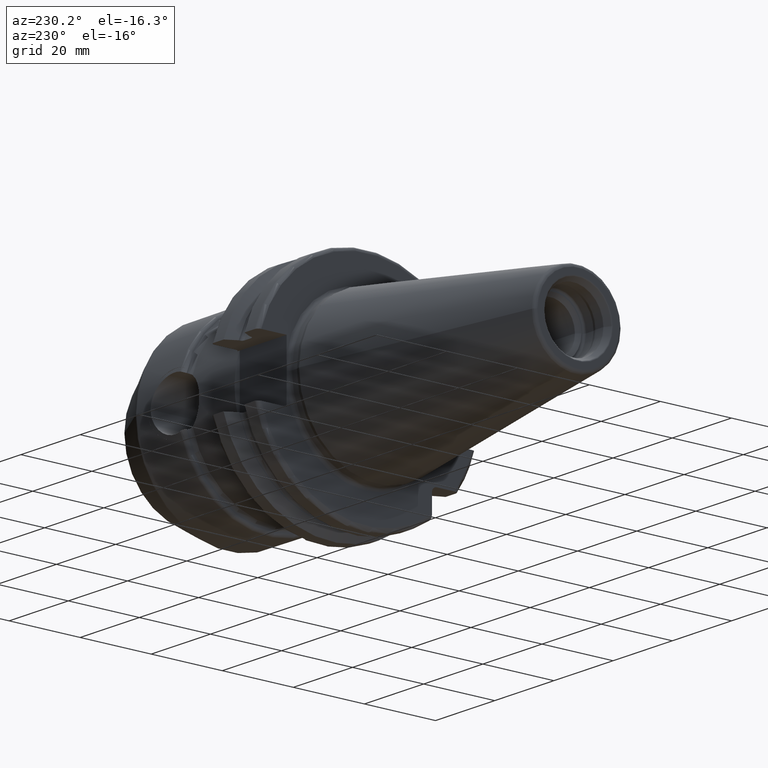
[diagram: clean part render]
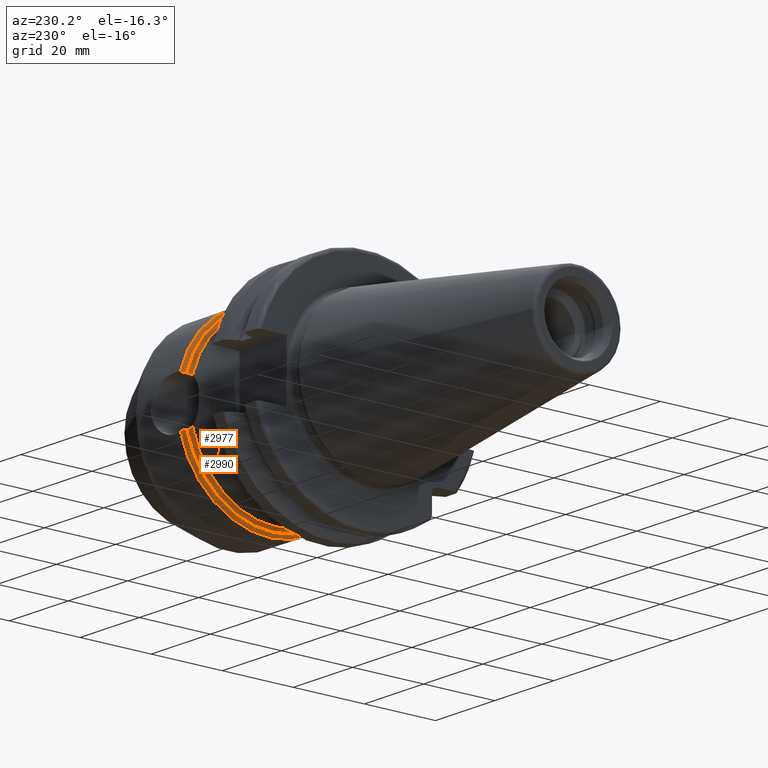
[diagram: same view with one multi-face feature highlighted, each face labeled with its STEP entity id]
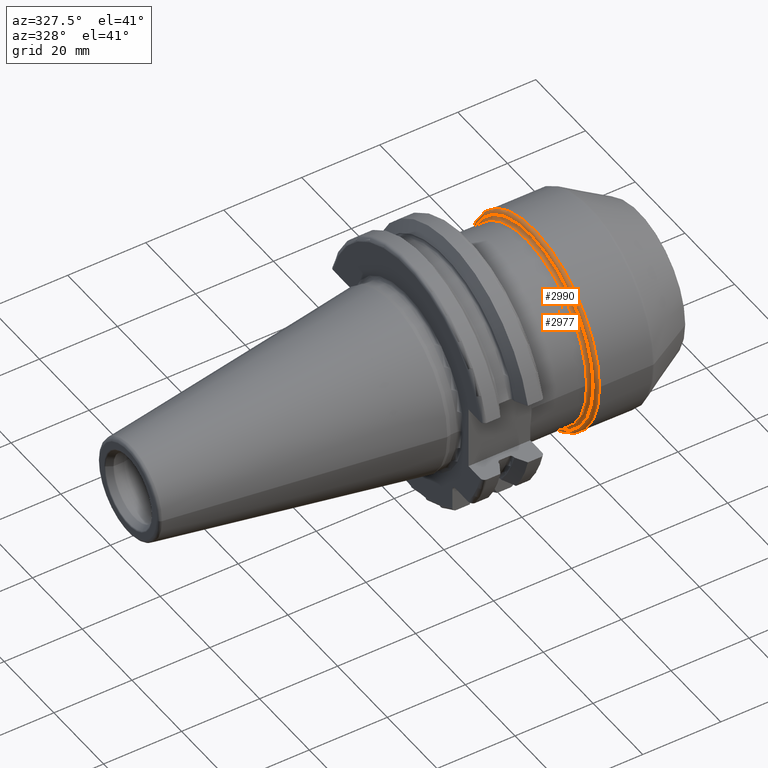
[diagram: same view with one multi-face feature highlighted, each face labeled with its STEP entity id]
A machine part, auxiliary view. The highlighted faces form ONE feature: a constant-radius fillet chain: 2 tangent blend faces with common blend radius 1 mm. The faces share edges in the B-rep.
A second angle (auxiliary view) of the same feature is appended — it is thin or edge-on in the first view.
Their STEP definitions:
[1] entity #2977 (Torus):
#144=CARTESIAN_POINT('',(3.405E1,2.329382965508E1,5.779057016504E0));
#157=CARTESIAN_POINT('',(3.405E1,0.E0,0.E0));
#158=DIRECTION('',(1.E0,0.E0,0.E0));
#159=DIRECTION('',(0.E0,9.705762356284E-1,2.407940423543E-1));
#160=AXIS2_PLACEMENT_3D('',#157,#158,#159);
#389=CARTESIAN_POINT('',(3.405E1,2.329382965508E1,-5.779057016504E0));
#408=CARTESIAN_POINT('',(3.405E1,0.E0,0.E0));
#409=DIRECTION('',(1.E0,0.E0,0.E0));
#410=DIRECTION('',(0.E0,-1.E0,0.E0));
#411=AXIS2_PLACEMENT_3D('',#408,#409,#410);
#1216=CARTESIAN_POINT('',(3.405E1,2.329382965508E1,-5.779057016504E0));
#1217=CARTESIAN_POINT('',(3.411745429534E1,2.328239124111E1,-5.825162196959E0));
#1218=CARTESIAN_POINT('',(3.425294254567E1,2.327344791337E1,-5.914404785129E0));
#1219=CARTESIAN_POINT('',(3.446715264422E1,2.331041673548E1,-6.044760707588E0));
#1220=CARTESIAN_POINT('',(3.466791750101E1,2.340607053837E1,-6.157255047662E0));
#1221=CARTESIAN_POINT('',(3.483187497409E1,2.354965146941E1,-6.242706560142E0));
#1222=CARTESIAN_POINT('',(3.495333012457E1,2.372949678296E1,-6.302518212948E0));
#1223=CARTESIAN_POINT('',(3.503027158742E1,2.393767395920E1,-6.338906082668E0));
#1224=CARTESIAN_POINT('',(3.505E1,2.409636816441E1,-6.348031190850E0));
#1225=CARTESIAN_POINT('',(3.505E1,2.418062240721E1,-6.348031190850E0));
#1227=CARTESIAN_POINT('',(3.505E1,2.418062240721E1,6.348031190850E0));
#1228=CARTESIAN_POINT('',(3.505E1,2.409636816441E1,6.348031190850E0));
#1229=CARTESIAN_POINT('',(3.503027158742E1,2.393767395920E1,6.338906082668E0));
#1230=CARTESIAN_POINT('',(3.495333012457E1,2.372949678296E1,6.302518212948E0));
#1231=CARTESIAN_POINT('',(3.483187497409E1,2.354965146941E1,6.242706560142E0));
#1232=CARTESIAN_POINT('',(3.466791750101E1,2.340607053837E1,6.157255047662E0));
#1233=CARTESIAN_POINT('',(3.446715264422E1,2.331041673548E1,6.044760707588E0));
#1234=CARTESIAN_POINT('',(3.425294254567E1,2.327344791337E1,5.914404785129E0));
#1235=CARTESIAN_POINT('',(3.411745429534E1,2.328239124111E1,5.825162196959E0));
#1236=CARTESIAN_POINT('',(3.405E1,2.329382965508E1,5.779057016504E0));
#1249=CARTESIAN_POINT('',(3.505E1,0.E0,0.E0));
#1250=DIRECTION('',(-1.E0,0.E0,0.E0));
#1251=DIRECTION('',(0.E0,9.672248962883E-1,-2.539212476340E-1));
#1252=AXIS2_PLACEMENT_3D('',#1249,#1250,#1251);
#1744=CARTESIAN_POINT('',(3.405E1,-2.4E1,2.031182410525E-13));
#1745=VERTEX_POINT('',#1744);
#1750=VERTEX_POINT('',#144);
#1751=VERTEX_POINT('',#389);
#1752=VERTEX_POINT('',#1227);
#1753=VERTEX_POINT('',#1225);
#2964=CARTESIAN_POINT('',(3.405E1,0.E0,0.E0));
#2965=DIRECTION('',(1.E0,0.E0,0.E0));
#2966=DIRECTION('',(0.E0,9.999774477568E-1,-6.715949512969E-3));
#2967=AXIS2_PLACEMENT_3D('',#2964,#2965,#2966);
#2968=TOROIDAL_SURFACE('',#2967,2.5E1,1.E0);
#2970=ORIENTED_EDGE('',*,*,#2969,.F.);
#2971=ORIENTED_EDGE('',*,*,#2065,.F.);
#2972=ORIENTED_EDGE('',*,*,#2228,.F.);
#2973=ORIENTED_EDGE('',*,*,#1986,.F.);
#2974=ORIENTED_EDGE('',*,*,#2008,.F.);
#2975=EDGE_LOOP('',(#2970,#2971,#2972,#2973,#2974));
#2976=FACE_OUTER_BOUND('',#2975,.F.);
#2977=ADVANCED_FACE('',(#2976),#2968,.F.);
#161=CIRCLE('',#160,2.4E1);
#412=CIRCLE('',#411,2.4E1);
#1226=B_SPLINE_CURVE_WITH_KNOTS('',3,(#1216,#1217,#1218,#1219,#1220,#1221,#1222,
#1223,#1224,#1225),.UNSPECIFIED.,.F.,.F.,(4,1,1,1,1,1,1,4),(0.E0,
1.428571428571E-1,2.857142857143E-1,4.285714285714E-1,5.714285714286E-1,
7.142857142857E-1,8.571428571429E-1,1.E0),.UNSPECIFIED.);
#1237=B_SPLINE_CURVE_WITH_KNOTS('',3,(#1227,#1228,#1229,#1230,#1231,#1232,#1233,
#1234,#1235,#1236),.UNSPECIFIED.,.F.,.F.,(4,1,1,1,1,1,1,4),(0.E0,
1.428571428571E-1,2.857142857143E-1,4.285714285714E-1,5.714285714286E-1,
7.142857142857E-1,8.571428571429E-1,1.E0),.UNSPECIFIED.);
#1253=CIRCLE('',#1252,2.5E1);
#1986=EDGE_CURVE('',#1750,#1745,#161,.T.);
#2008=EDGE_CURVE('',#1752,#1750,#1237,.T.);
#2065=EDGE_CURVE('',#1751,#1753,#1226,.T.);
#2228=EDGE_CURVE('',#1745,#1751,#412,.T.);
#2969=EDGE_CURVE('',#1753,#1752,#1253,.T.);
[2] entity #2990 (Torus):
#193=CARTESIAN_POINT('',(3.605E1,2.511578189107E1,6.722908596731E0));
#200=CARTESIAN_POINT('',(3.605E1,0.E0,0.E0));
#201=DIRECTION('',(-1.E0,0.E0,0.E0));
#202=DIRECTION('',(0.E0,-1.E0,0.E0));
#203=AXIS2_PLACEMENT_3D('',#200,#201,#202);
#205=CARTESIAN_POINT('',(3.605E1,2.511578189107E1,-6.722908596731E0));
#221=CARTESIAN_POINT('',(3.605E1,0.E0,0.E0));
#222=DIRECTION('',(-1.E0,0.E0,0.E0));
#223=DIRECTION('',(0.E0,9.659916111952E-1,-2.585734075666E-1));
#224=AXIS2_PLACEMENT_3D('',#221,#222,#223);
#1225=CARTESIAN_POINT('',(3.505E1,2.418062240721E1,-6.348031190850E0));
#1227=CARTESIAN_POINT('',(3.505E1,2.418062240721E1,6.348031190850E0));
#1238=CARTESIAN_POINT('',(3.505E1,2.418062240721E1,-6.348031190850E0));
#1239=CARTESIAN_POINT('',(3.505E1,2.425518389424E1,-6.348031190850E0));
#1240=CARTESIAN_POINT('',(3.506514434061E1,2.439979514300E1,-6.355102394876E0));
#1241=CARTESIAN_POINT('',(3.513533742626E1,2.460904115236E1,-6.387266329638E0));
#1242=CARTESIAN_POINT('',(3.525158539734E1,2.479302583771E1,-6.438426872977E0));
#1243=CARTESIAN_POINT('',(3.540236833231E1,2.493864993245E1,-6.500993290820E0));
#1244=CARTESIAN_POINT('',(3.558328643848E1,2.504603009743E1,-6.570695235158E0));
#1245=CARTESIAN_POINT('',(3.579622915712E1,2.511249703233E1,-6.645523840204E0));
#1246=CARTESIAN_POINT('',(3.596166090660E1,2.512264057590E1,-6.697285575139E0));
#1247=CARTESIAN_POINT('',(3.605E1,2.511578189107E1,-6.722908596731E0));
#1249=CARTESIAN_POINT('',(3.505E1,0.E0,0.E0));
#1250=DIRECTION('',(-1.E0,0.E0,0.E0));
#1251=DIRECTION('',(0.E0,9.672248962883E-1,-2.539212476340E-1));
#1252=AXIS2_PLACEMENT_3D('',#1249,#1250,#1251);
#1254=CARTESIAN_POINT('',(3.605E1,2.511578189107E1,6.722908596731E0));
#1255=CARTESIAN_POINT('',(3.596216680699E1,2.512260129758E1,6.697432313079E0));
#1256=CARTESIAN_POINT('',(3.579731143103E1,2.511271702358E1,6.645887532211E0));
#1257=CARTESIAN_POINT('',(3.558309964967E1,2.504608970573E1,6.570643848804E0));
#1258=CARTESIAN_POINT('',(3.540122706850E1,2.493783564503E1,6.500539326550E0));
#1259=CARTESIAN_POINT('',(3.525075669184E1,2.479196085657E1,6.438068526511E0));
#1260=CARTESIAN_POINT('',(3.513496573535E1,2.460815551031E1,6.387097380902E0));
#1261=CARTESIAN_POINT('',(3.506510545355E1,2.439943125056E1,6.355083881584E0));
#1262=CARTESIAN_POINT('',(3.505E1,2.425506169221E1,6.348031190850E0));
#1263=CARTESIAN_POINT('',(3.505E1,2.418062240721E1,6.348031190850E0));
#1718=VERTEX_POINT('',#193);
#1719=VERTEX_POINT('',#205);
#1748=CARTESIAN_POINT('',(3.605E1,-2.6E1,-4.347385006592E-12));
#1749=VERTEX_POINT('',#1748);
#1752=VERTEX_POINT('',#1227);
#1753=VERTEX_POINT('',#1225);
#2978=CARTESIAN_POINT('',(3.605E1,0.E0,0.E0));
#2979=DIRECTION('',(1.E0,0.E0,0.E0));
#2980=DIRECTION('',(0.E0,-9.999647085759E-1,-8.401285782876E-3));
#2981=AXIS2_PLACEMENT_3D('',#2978,#2979,#2980);
#2982=TOROIDAL_SURFACE('',#2981,2.5E1,1.E0);
#2983=ORIENTED_EDGE('',*,*,#2032,.F.);
#2984=ORIENTED_EDGE('',*,*,#2044,.F.);
#2985=ORIENTED_EDGE('',*,*,#2067,.F.);
#2986=ORIENTED_EDGE('',*,*,#2969,.T.);
#2987=ORIENTED_EDGE('',*,*,#2006,.F.);
#2988=EDGE_LOOP('',(#2983,#2984,#2985,#2986,#2987));
#2989=FACE_OUTER_BOUND('',#2988,.F.);
#2990=ADVANCED_FACE('',(#2989),#2982,.T.);
#204=CIRCLE('',#203,2.6E1);
#225=CIRCLE('',#224,2.6E1);
#1248=B_SPLINE_CURVE_WITH_KNOTS('',3,(#1238,#1239,#1240,#1241,#1242,#1243,#1244,
#1245,#1246,#1247),.UNSPECIFIED.,.F.,.F.,(4,1,1,1,1,1,1,4),(0.E0,
1.428571428571E-1,2.857142857143E-1,4.285714285714E-1,5.714285714286E-1,
7.142857142857E-1,8.571428571429E-1,1.E0),.UNSPECIFIED.);
#1253=CIRCLE('',#1252,2.5E1);
#1264=B_SPLINE_CURVE_WITH_KNOTS('',3,(#1254,#1255,#1256,#1257,#1258,#1259,#1260,
#1261,#1262,#1263),.UNSPECIFIED.,.F.,.F.,(4,1,1,1,1,1,1,4),(0.E0,
1.428571428571E-1,2.857142857143E-1,4.285714285714E-1,5.714285714286E-1,
7.142857142857E-1,8.571428571429E-1,1.E0),.UNSPECIFIED.);
#2006=EDGE_CURVE('',#1718,#1752,#1264,.T.);
#2032=EDGE_CURVE('',#1749,#1718,#204,.T.);
#2044=EDGE_CURVE('',#1719,#1749,#225,.T.);
#2067=EDGE_CURVE('',#1753,#1719,#1248,.T.);
#2969=EDGE_CURVE('',#1753,#1752,#1253,.T.);